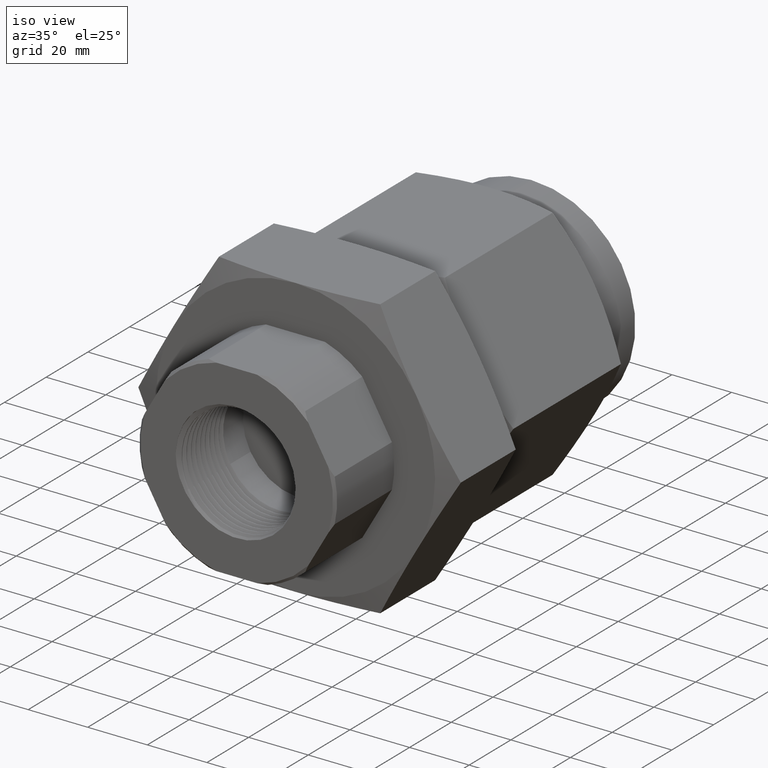
[diagram: clean part render]
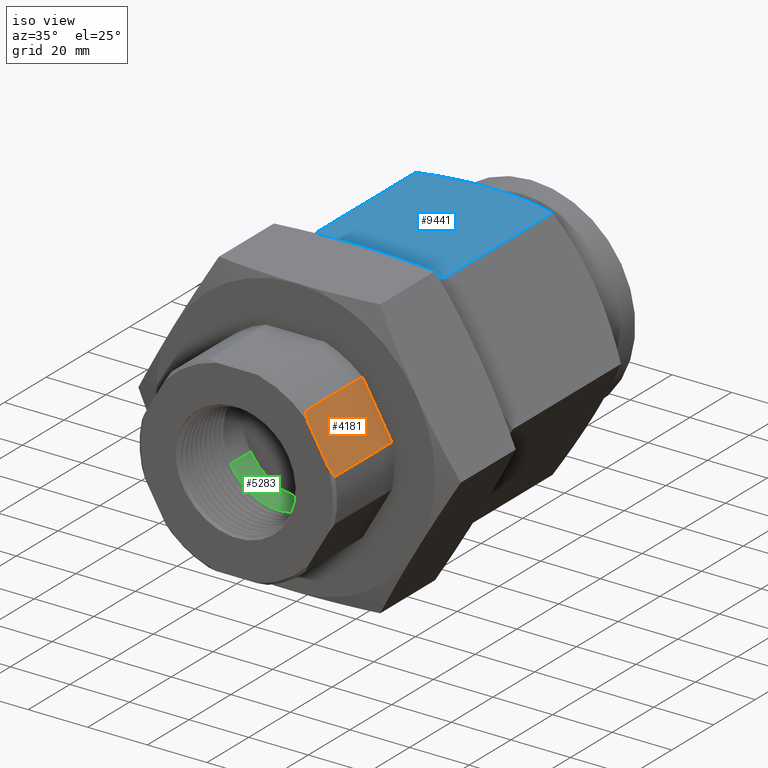
[diagram: same view with three faces highlighted in distinct colors, each labeled with its STEP entity id]
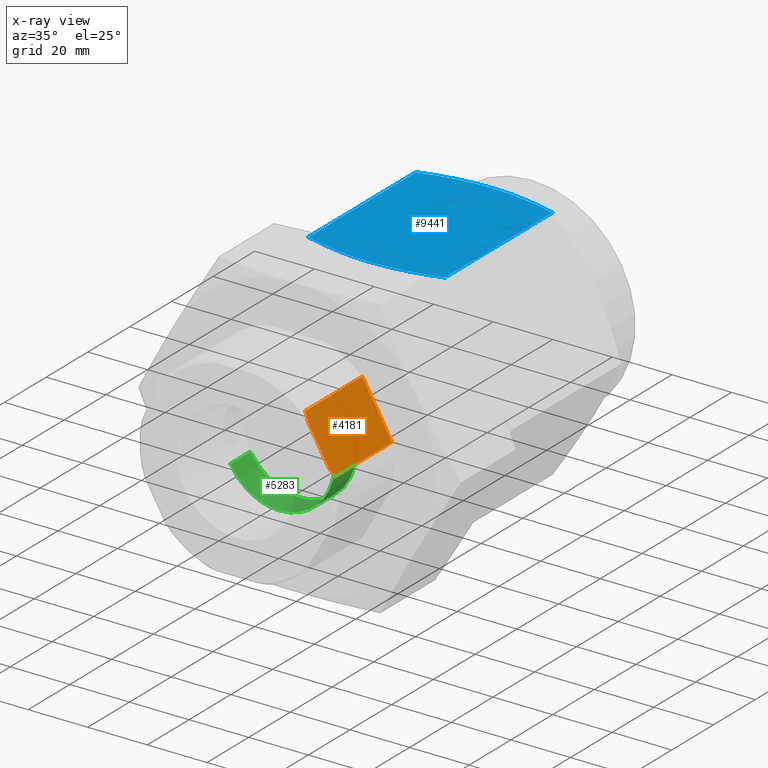
[diagram: x-ray of the same camera — body ghosted, the three highlighted faces saturated]
A machine part, iso view with three faces highlighted in distinct colors.
The next image is the same camera in x-ray (body ghosted, the three faces saturated) — at least one of them is partly hidden behind the body in this view.
Their STEP definitions:

[orange] entity #4181 — the highlighted planar face has unit normal (0.866, 0, 0.5).
#57 = CARTESIAN_POINT ( 'NONE',  ( 1.233175509396182701, -5.841264994950113199, 0.3540773630764427193 ) ) ;
#332 = CARTESIAN_POINT ( 'NONE',  ( 0.8826255555556963284, -5.819115258923458711, 0.9612476937190879145 ) ) ;
#403 = DIRECTION ( 'NONE',  ( -0.0000000000000000000, 1.000000000000000000, 0.0000000000000000000 ) ) ;
#551 = EDGE_CURVE ( 'Defeatured_0_53+Defeatured_0_44+Defeatured_0_58+Defeatured_0_36', #1548, #3541, #8849, .T. ) ;
#617 = DIRECTION ( 'NONE',  ( 0.5000000000000006661, 0.0000000000000000000, -0.8660254037844382635 ) ) ;
#839 = EDGE_CURVE ( 'Defeatured_0_53+Defeatured_0_57+Defeatured_0_43+Defeatured_0_55', #7673, #1538, #9475, .T. ) ;
#845 = CARTESIAN_POINT ( 'NONE',  ( 1.263719411576707419, -5.825144869702298500, 0.3011737726383604263 ) ) ;
#921 = VECTOR ( 'NONE', #403, 39.37007874015748143 ) ;
#990 = VECTOR ( 'NONE', #6202, 39.37007874015748143 ) ;
#1219 = CARTESIAN_POINT ( 'NONE',  ( 0.9230500090015093528, -5.841660169453755103, 0.8912304864827378381 ) ) ;
#1362 = VERTEX_POINT ( 'NONE', #5726 ) ;
#1452 = CARTESIAN_POINT ( 'NONE',  ( 1.437602170282320069, -5.850365258923459599, -1.365923996832131609E-16 ) ) ;
#1462 = ORIENTED_EDGE ( 'NONE', *, *, #839, .T. ) ;
#1535 = EDGE_CURVE ( 'Defeatured_0_53+Defeatured_0_36+Defeatured_0_44+Defeatured_0_43', #3541, #8400, #5091, .T. ) ;
#1538 = VERTEX_POINT ( 'NONE', #7748 ) ;
#1548 = VERTEX_POINT ( 'NONE', #5478 ) ;
#1555 = LINE ( 'NONE', #1452, #7450 ) ;
#1601 = ORIENTED_EDGE ( 'NONE', *, *, #2155, .T. ) ;
#1611 = CARTESIAN_POINT ( 'NONE',  ( 1.437602170282320069, -4.740365258923460168, -1.365923996832131609E-16 ) ) ;
#2155 = EDGE_CURVE ( 'Defeatured_0_53+Defeatured_0_43+Defeatured_0_36+Defeatured_0_57', #8400, #7673, #5796, .T. ) ;
#2547 = CARTESIAN_POINT ( 'NONE',  ( 0.8826255555556963284, -5.819115258923458711, 0.9612476937190879145 ) ) ;
#3037 = CARTESIAN_POINT ( 'NONE',  ( 1.273777699867857605, -4.740365258923460168, 0.2837523062809124141 ) ) ;
#3541 = VERTEX_POINT ( 'NONE', #3037 ) ;
#3578 = CARTESIAN_POINT ( 'NONE',  ( 0.9436523221580126464, -5.850365258923459599, 0.8555462333422291232 ) ) ;
#3735 = B_SPLINE_CURVE_WITH_KNOTS ( 'NONE', 3,
 ( #3915, #7729, #57, #5450, #845, #6207 ),
 .UNSPECIFIED., .F., .F.,
 ( 4, 2, 4 ),
 ( 0.05221388179553555775, 0.05379977993857580632, 0.05538567808161606182 ),
 .UNSPECIFIED. ) ;
#3748 = VECTOR ( 'NONE', #4972, 39.37007874015748143 ) ;
#3915 = CARTESIAN_POINT ( 'NONE',  ( 1.212750933265541065, -5.850365258923459599, 0.3894537666577720381 ) ) ;
#4181 = ADVANCED_FACE ( 'Defeatured_0_53', ( #8595 ), #9755, .T. ) ;
#4466 = ORIENTED_EDGE ( 'NONE', *, *, #551, .T. ) ;
#4889 = AXIS2_PLACEMENT_3D ( 'NONE', #9783, #5216, #617 ) ;
#4972 = DIRECTION ( 'NONE',  ( 0.0000000000000000000, -1.000000000000000000, -0.0000000000000000000 ) ) ;
#5078 = EDGE_LOOP ( 'NONE', ( #4466, #7697, #1601, #1462, #6976, #8004 ) ) ;
#5091 = LINE ( 'NONE', #1611, #990 ) ;
#5216 = DIRECTION ( 'NONE',  ( 0.8660254037844382635, 0.0000000000000000000, 0.5000000000000006661 ) ) ;
#5450 = CARTESIAN_POINT ( 'NONE',  ( 1.253549911119434590, -5.830815113661266480, 0.3187878641179512917 ) ) ;
#5478 = CARTESIAN_POINT ( 'NONE',  ( 1.273777699867857605, -5.819115258923460487, 0.2837523062809123586 ) ) ;
#5726 = CARTESIAN_POINT ( 'NONE',  ( 1.212750933265541065, -5.850365258923459599, 0.3894537666577720381 ) ) ;
#5796 = LINE ( 'NONE', #7958, #3748 ) ;
#5945 = EDGE_CURVE ( 'Defeatured_0_53+Defeatured_0_58+Defeatured_0_55+Defeatured_0_44', #1362, #1548, #3735, .T. ) ;
#6031 = CARTESIAN_POINT ( 'NONE',  ( 0.8826255555556963284, -4.740365258923460168, 0.9612476937190879145 ) ) ;
#6202 = DIRECTION ( 'NONE',  ( -0.5000000000000006661, 0.0000000000000000000, 0.8660254037844382635 ) ) ;
#6207 = CARTESIAN_POINT ( 'NONE',  ( 1.273777699867857605, -5.819115258923460487, 0.2837523062809123586 ) ) ;
#6976 = ORIENTED_EDGE ( 'NONE', *, *, #8549, .F. ) ;
#7228 = CARTESIAN_POINT ( 'NONE',  ( 0.9027202351847269934, -5.831161353982710516, 0.9264426876397877653 ) ) ;
#7324 = CARTESIAN_POINT ( 'NONE',  ( 1.273777699867857383, -4.850326807657659778, 0.2837523062809131358 ) ) ;
#7450 = VECTOR ( 'NONE', #9120, 39.37007874015748143 ) ;
#7673 = VERTEX_POINT ( 'NONE', #2547 ) ;
#7697 = ORIENTED_EDGE ( 'NONE', *, *, #1535, .T. ) ;
#7729 = CARTESIAN_POINT ( 'NONE',  ( 1.222971827765791275, -5.846046627301408449, 0.3717506580845377773 ) ) ;
#7748 = CARTESIAN_POINT ( 'NONE',  ( 0.9436523221580126464, -5.850365258923459599, 0.8555462333422291232 ) ) ;
#7958 = CARTESIAN_POINT ( 'NONE',  ( 0.8826255555556963284, -4.850326807657659778, 0.9612476937190879145 ) ) ;
#8004 = ORIENTED_EDGE ( 'NONE', *, *, #5945, .T. ) ;
#8400 = VERTEX_POINT ( 'NONE', #6031 ) ;
#8549 = EDGE_CURVE ( 'Defeatured_0_55+Defeatured_0_53+Defeatured_0_58+Defeatured_0_57', #1362, #1538, #1555, .T. ) ;
#8595 = FACE_OUTER_BOUND ( 'NONE', #5078, .T. ) ;
#8849 = LINE ( 'NONE', #7324, #921 ) ;
#9120 = DIRECTION ( 'NONE',  ( -0.5000000000000006661, 0.0000000000000000000, 0.8660254037844382635 ) ) ;
#9475 = B_SPLINE_CURVE_WITH_KNOTS ( 'NONE', 3,
 ( #332, #7228, #1219, #3578 ),
 .UNSPECIFIED., .F., .F.,
 ( 4, 4 ),
 ( 0.03527650963026937592, 0.03846934127459206848 ),
 .UNSPECIFIED. ) ;
#9755 = PLANE ( 'NONE',  #4889 ) ;
#9783 = CARTESIAN_POINT ( 'NONE',  ( 1.437602170282320069, 3.415442120478395349, -1.365923996832131609E-16 ) ) ;

[blue] entity #9441 — the highlighted planar face has unit normal (0, 0, -1).
#52 = DIRECTION ( 'NONE',  ( 0.0000000000000000000, 1.000000000000000000, 0.0000000000000000000 ) ) ;
#131 = EDGE_CURVE ( 'Defeatured_0_18+Defeatured_0_7+Defeatured_0_17+Defeatured_0_8', #1443, #6875, #9540, .T. ) ;
#388 = ORIENTED_EDGE ( 'NONE', *, *, #1496, .F. ) ;
#489 = EDGE_LOOP ( 'NONE', ( #3903, #8776, #7902, #388, #3988, #1073 ) ) ;
#523 = CARTESIAN_POINT ( 'NONE',  ( 0.7574239598413903263, -1.137961551194199838, 1.564999999999999281 ) ) ;
#763 = CARTESIAN_POINT ( 'NONE',  ( -0.9035531712816132766, -3.210585096871889643, 1.564999999999999281 ) ) ;
#971 = DIRECTION ( 'NONE',  ( 3.023450174812526043E-16, 0.0000000000000000000, -1.000000000000000000 ) ) ;
#1073 = ORIENTED_EDGE ( 'NONE', *, *, #8970, .F. ) ;
#1229 = LINE ( 'NONE', #5445, #3270 ) ;
#1354 = B_SPLINE_CURVE_WITH_KNOTS ( 'NONE', 3,
 ( #3468, #8807, #1960, #7317, #2719, #8079, #3506, #8867 ),
 .UNSPECIFIED., .F., .F.,
 ( 4, 2, 2, 4 ),
 ( 0.1171362608535654465, 0.1287599643593018983, 0.1345718161121701451, 0.1403836678650383640 ),
 .UNSPECIFIED. ) ;
#1443 = VERTEX_POINT ( 'NONE', #4180 ) ;
#1478 = LINE ( 'NONE', #7093, #3535 ) ;
#1496 = EDGE_CURVE ( 'Defeatured_0_19+Defeatured_0_18+Defeatured_0_3+Defeatured_0_8', #8306, #2632, #1229, .T. ) ;
#1613 = VERTEX_POINT ( 'NONE', #4747 ) ;
#1680 = PLANE ( 'NONE',  #6069 ) ;
#1732 = DIRECTION ( 'NONE',  ( 0.0000000000000000000, 1.000000000000000000, 0.0000000000000000000 ) ) ;
#1960 = CARTESIAN_POINT ( 'NONE',  ( 0.6094289521518392316, -3.287880661820777650, 1.564999999999999725 ) ) ;
#2233 = CARTESIAN_POINT ( 'NONE',  ( -0.5306385567798626024, -1.089975962029831713, 1.564999999999999725 ) ) ;
#2263 = CARTESIAN_POINT ( 'NONE',  ( -0.1528140639889800645, -3.350365258923460487, 1.564999999999999281 ) ) ;
#2289 = VERTEX_POINT ( 'NONE', #8151 ) ;
#2537 = EDGE_CURVE ( 'Defeatured_0_3+Defeatured_0_18+Defeatured_0_11+Defeatured_0_19', #1613, #8306, #5084, .T. ) ;
#2632 = VERTEX_POINT ( 'NONE', #8843 ) ;
#2719 = CARTESIAN_POINT ( 'NONE',  ( 0.3071270645104349772, -3.334179326830782664, 1.564999999999999503 ) ) ;
#2821 = CARTESIAN_POINT ( 'NONE',  ( 0.07646098121709896112, -1.040365258923458436, 1.564999999999999503 ) ) ;
#3011 = CARTESIAN_POINT ( 'NONE',  ( -0.7181939216858158614, -1.130768291849557183, 1.564999999999999281 ) ) ;
#3035 = CARTESIAN_POINT ( 'NONE',  ( -0.3045125553253294481, -3.337221417038239046, 1.564999999999999281 ) ) ;
#3270 = VECTOR ( 'NONE', #52, 39.37007874015748143 ) ;
#3468 = CARTESIAN_POINT ( 'NONE',  ( 0.9035531712819157013, -3.210585096871889643, 1.564999999999999725 ) ) ;
#3506 = CARTESIAN_POINT ( 'NONE',  ( 0.07646098121710014073, -3.350365258923458267, 1.564999999999999503 ) ) ;
#3535 = VECTOR ( 'NONE', #1732, 39.37007874015748143 ) ;
#3587 = CARTESIAN_POINT ( 'NONE',  ( 0.3071270645104325347, -1.056551191016134039, 1.564999999999999725 ) ) ;
#3797 = CARTESIAN_POINT ( 'NONE',  ( -0.8298408535343854142, -1.159351964973835525, 1.564999999999999503 ) ) ;
#3818 = CARTESIAN_POINT ( 'NONE',  ( -0.6057805361446700898, -3.285849518748868103, 1.564999999999999059 ) ) ;
#3903 = ORIENTED_EDGE ( 'NONE', *, *, #5308, .T. ) ;
#3988 = ORIENTED_EDGE ( 'NONE', *, *, #2537, .F. ) ;
#4180 = CARTESIAN_POINT ( 'NONE',  ( 0.9035531712819157013, -1.180145420975027282, 1.564999999999999725 ) ) ;
#4357 = CARTESIAN_POINT ( 'NONE',  ( 0.9035531712819157013, -1.180145420975027282, 1.564999999999999725 ) ) ;
#4407 = EDGE_CURVE ( 'Defeatured_0_18+Defeatured_0_8+Defeatured_0_7+Defeatured_0_19', #6875, #2632, #6048, .T. ) ;
#4558 = CARTESIAN_POINT ( 'NONE',  ( -0.9035531712816132766, -1.180145420975027282, 1.564999999999999281 ) ) ;
#4590 = CARTESIAN_POINT ( 'NONE',  ( -0.7555709819760989543, -3.250754258062410695, 1.564999999999999059 ) ) ;
#4747 = CARTESIAN_POINT ( 'NONE',  ( 1.511923348447106986E-13, -3.350365258923458711, 1.564999999999999503 ) ) ;
#5084 = B_SPLINE_CURVE_WITH_KNOTS ( 'NONE', 3,
 ( #6874, #2263, #3035, #8384, #3818, #9154, #4590, #9920, #5359, #763 ),
 .UNSPECIFIED., .F., .F.,
 ( 4, 2, 2, 2, 4 ),
 ( 0.1403836678650383640, 0.1519991699358029802, 0.1578069209711852605, 0.1607107964888764284, 0.1636146720065675686 ),
 .UNSPECIFIED. ) ;
#5308 = EDGE_CURVE ( 'Defeatured_0_18+Defeatured_0_17+Defeatured_0_2+Defeatured_0_7', #2289, #1443, #1478, .T. ) ;
#5359 = CARTESIAN_POINT ( 'NONE',  ( -0.8667827373933875146, -3.221199806823682898, 1.564999999999999281 ) ) ;
#5445 = CARTESIAN_POINT ( 'NONE',  ( -0.9035531712816132766, -13.61734876248475423, 1.564999999999999281 ) ) ;
#5589 = CARTESIAN_POINT ( 'NONE',  ( 1.511923348447406374E-13, -13.61734876248475423, 1.564999999999999503 ) ) ;
#6048 = B_SPLINE_CURVE_WITH_KNOTS ( 'NONE', 3,
 ( #9099, #9871, #6845, #2233, #7616, #3011, #8357, #3797, #9132, #4558 ),
 .UNSPECIFIED., .F., .F.,
 ( 4, 2, 2, 2, 4 ),
 ( 0.1403836678650385028, 0.1519991699358030912, 0.1578069209711853993, 0.1607107964888765395, 0.1636146720065676796 ),
 .UNSPECIFIED. ) ;
#6069 = AXIS2_PLACEMENT_3D ( 'NONE', #5589, #971, #6330 ) ;
#6330 = DIRECTION ( 'NONE',  ( 1.000000000000000000, 0.0000000000000000000, 3.023450174812526043E-16 ) ) ;
#6577 = FACE_OUTER_BOUND ( 'NONE', #489, .T. ) ;
#6699 = CARTESIAN_POINT ( 'NONE',  ( 0.6094289521518378994, -1.102849856026138609, 1.564999999999999503 ) ) ;
#6845 = CARTESIAN_POINT ( 'NONE',  ( -0.3045125553253301143, -1.053509100808678545, 1.564999999999999503 ) ) ;
#6874 = CARTESIAN_POINT ( 'NONE',  ( 1.511923348447106986E-13, -3.350365258923458711, 1.564999999999999503 ) ) ;
#6875 = VERTEX_POINT ( 'NONE', #9457 ) ;
#7093 = CARTESIAN_POINT ( 'NONE',  ( 0.9035531712819157013, -13.61734876248475423, 1.564999999999999725 ) ) ;
#7317 = CARTESIAN_POINT ( 'NONE',  ( 0.3832309710771526490, -3.324607656437669423, 1.564999999999999503 ) ) ;
#7408 = CARTESIAN_POINT ( 'NONE',  ( 1.511923348447406374E-13, -1.040365258923458436, 1.564999999999999503 ) ) ;
#7435 = CARTESIAN_POINT ( 'NONE',  ( -0.9035531712816132766, -3.210585096871889643, 1.564999999999999281 ) ) ;
#7616 = CARTESIAN_POINT ( 'NONE',  ( -0.6057805361446695347, -1.104880999098049044, 1.564999999999999281 ) ) ;
#7902 = ORIENTED_EDGE ( 'NONE', *, *, #4407, .T. ) ;
#8079 = CARTESIAN_POINT ( 'NONE',  ( 0.1532791009017170636, -3.347105788063061471, 1.564999999999999503 ) ) ;
#8151 = CARTESIAN_POINT ( 'NONE',  ( 0.9035531712819157013, -3.210585096871889643, 1.564999999999999725 ) ) ;
#8157 = CARTESIAN_POINT ( 'NONE',  ( 0.1532791009017143158, -1.043624729783855898, 1.564999999999999503 ) ) ;
#8306 = VERTEX_POINT ( 'NONE', #7435 ) ;
#8357 = CARTESIAN_POINT ( 'NONE',  ( -0.7555709819761008417, -1.139976259784506674, 1.564999999999999281 ) ) ;
#8384 = CARTESIAN_POINT ( 'NONE',  ( -0.5306385567798621583, -3.300754555817085656, 1.564999999999999503 ) ) ;
#8776 = ORIENTED_EDGE ( 'NONE', *, *, #131, .T. ) ;
#8807 = CARTESIAN_POINT ( 'NONE',  ( 0.7574239598413911034, -3.252768966652716642, 1.564999999999999725 ) ) ;
#8843 = CARTESIAN_POINT ( 'NONE',  ( -0.9035531712816132766, -1.180145420975027282, 1.564999999999999281 ) ) ;
#8867 = CARTESIAN_POINT ( 'NONE',  ( 1.511923348447106986E-13, -3.350365258923458711, 1.564999999999999503 ) ) ;
#8945 = CARTESIAN_POINT ( 'NONE',  ( 0.3832309710771509836, -1.066122861409247058, 1.565000000000000169 ) ) ;
#8970 = EDGE_CURVE ( 'Defeatured_0_2+Defeatured_0_18+Defeatured_0_17+Defeatured_0_11', #2289, #1613, #1354, .T. ) ;
#9099 = CARTESIAN_POINT ( 'NONE',  ( 1.511923348447406374E-13, -1.040365258923458436, 1.564999999999999503 ) ) ;
#9132 = CARTESIAN_POINT ( 'NONE',  ( -0.8667827373933879587, -1.169530711023234026, 1.564999999999999281 ) ) ;
#9154 = CARTESIAN_POINT ( 'NONE',  ( -0.7181939216858166386, -3.259962225997359297, 1.564999999999999281 ) ) ;
#9441 = ADVANCED_FACE ( 'Defeatured_0_18', ( #6577 ), #1680, .F. ) ;
#9457 = CARTESIAN_POINT ( 'NONE',  ( 1.511923348447406374E-13, -1.040365258923458436, 1.564999999999999503 ) ) ;
#9540 = B_SPLINE_CURVE_WITH_KNOTS ( 'NONE', 3,
 ( #4357, #523, #6699, #8945, #3587, #8157, #2821, #7408 ),
 .UNSPECIFIED., .F., .F.,
 ( 4, 2, 2, 4 ),
 ( 0.1171362608535655436, 0.1287599643593020371, 0.1345718161121702561, 0.1403836678650385028 ),
 .UNSPECIFIED. ) ;
#9871 = CARTESIAN_POINT ( 'NONE',  ( -0.1528140639889812025, -1.040365258923458214, 1.564999999999999281 ) ) ;
#9920 = CARTESIAN_POINT ( 'NONE',  ( -0.8298408535343838599, -3.231378552873082732, 1.564999999999999503 ) ) ;

[green] entity #5283 — the highlighted cylindrical surface (partial cylindrical patch) has radius 19.05 mm, axis along (0, -1, -0).
#254 = ORIENTED_EDGE ( 'NONE', *, *, #5994, .F. ) ;
#293 = CIRCLE ( 'NONE', #5170, 0.7500000000000001110 ) ;
#360 = CARTESIAN_POINT ( 'NONE',  ( 0.6495196627501753639, -5.086239550705692558, 0.3749989436019569577 ) ) ;
#387 = FACE_OUTER_BOUND ( 'NONE', #2425, .T. ) ;
#408 = CARTESIAN_POINT ( 'NONE',  ( 0.7458032475535338879, -5.071924841701319409, 0.2082296299916158722 ) ) ;
#444 = CARTESIAN_POINT ( 'NONE',  ( -0.6495190528381779016, -5.042761311599803342, -0.3749999999999993339 ) ) ;
#522 = CARTESIAN_POINT ( 'NONE',  ( 0.7498355626653154804, -5.043017121457082474, 0.01570442493918775342 ) ) ;
#879 = EDGE_CURVE ( 'Defeatured_0_62+Defeatured_0_67+Defeatured_0_67+Defeatured_0_67', #7200, #6762, #293, .T. ) ;
#900 = CARTESIAN_POINT ( 'NONE',  ( 0.6495190528384805484, -4.662865258923458711, 0.3750000000000002776 ) ) ;
#953 = DIRECTION ( 'NONE',  ( 0.8660254037844383745, 0.0000000000000000000, 0.5000000000000003331 ) ) ;
#986 = ORIENTED_EDGE ( 'NONE', *, *, #3277, .F. ) ;
#1025 = EDGE_CURVE ( 'Defeatured_0_65+Defeatured_0_67+Defeatured_0_66+Defeatured_0_64', #3104, #2788, #6751, .T. ) ;
#1188 = CARTESIAN_POINT ( 'NONE',  ( 0.6495196627501753639, -5.075360575885927261, 0.3749989436019569577 ) ) ;
#1451 = VECTOR ( 'NONE', #9239, 39.37007874015748143 ) ;
#1610 = VERTEX_POINT ( 'NONE', #9296 ) ;
#1895 = CARTESIAN_POINT ( 'NONE',  ( -0.3050547110333163836, -5.051456920246385707, -0.6851581009345854012 ) ) ;
#1946 = ORIENTED_EDGE ( 'NONE', *, *, #5325, .T. ) ;
#2425 = EDGE_LOOP ( 'NONE', ( #8312, #1946, #8996, #2674, #986, #6488, #3466, #254 ) ) ;
#2459 = CARTESIAN_POINT ( 'NONE',  ( 1.516655047970987846E-13, -4.850326807657659778, 0.0000000000000000000 ) ) ;
#2480 = DIRECTION ( 'NONE',  ( 0.0000000000000000000, -1.000000000000000000, -0.0000000000000000000 ) ) ;
#2489 = CARTESIAN_POINT ( 'NONE',  ( 1.516655047970987846E-13, -4.662865258923458711, 0.0000000000000000000 ) ) ;
#2653 = CARTESIAN_POINT ( 'NONE',  ( 0.1559313817780042244, -5.060152572420298256, -0.7336112077775596152 ) ) ;
#2674 = ORIENTED_EDGE ( 'NONE', *, *, #6420, .F. ) ;
#2747 =( BOUNDED_CURVE ( )  B_SPLINE_CURVE ( 2, ( #9519, #4167, #1895, #7254, #2653, #8005, #3435, #8806, #4199, #9544, #4994, #360, #5764 ),
 .UNSPECIFIED., .F., .T. ) 
 B_SPLINE_CURVE_WITH_KNOTS ( ( 3, 2, 2, 2, 2, 2, 3 ),
 ( 0.05271287997167806161, 0.06180374121494602857, 0.07089465030585517802, 0.07998555939676421644, 0.08907646848767336589, 0.09816737757858240432, 0.09816742542622347578 ),
 .UNSPECIFIED. ) 
 CURVE ( )  GEOMETRIC_REPRESENTATION_ITEM ( )  RATIONAL_B_SPLINE_CURVE ( ( 0.9999994848000586245, 0.9510567738964801343, 1.000000000000000000, 0.9510565162951536422, 1.000000000000000000, 0.9510565162951536422, 1.000000000000000000, 0.9510565162951536422, 1.000000000000000000, 0.9510565162951536422, 1.000000000000000000, 0.9999997423986735079, 0.9999994848000586245 ) ) 
 REPRESENTATION_ITEM ( '' )  );
#2778 = CARTESIAN_POINT ( 'NONE',  ( 0.7498355529948542708, -4.992298761524515349, 0.01570488666398634978 ) ) ;
#2788 = VERTEX_POINT ( 'NONE', #7468 ) ;
#2844 = CARTESIAN_POINT ( 'NONE',  ( 0.7498355529948542708, -4.992298761524515349, 0.01570488666398634978 ) ) ;
#3104 = VERTEX_POINT ( 'NONE', #5645 ) ;
#3172 = DIRECTION ( 'NONE',  ( 0.0000000000000000000, -1.000000000000000000, -0.0000000000000000000 ) ) ;
#3271 = DIRECTION ( 'NONE',  ( 0.8660254037844383745, 0.0000000000000000000, 0.5000000000000003331 ) ) ;
#3277 = EDGE_CURVE ( 'Defeatured_0_64+Defeatured_0_67+Defeatured_0_65+Defeatured_0_68', #2788, #1610, #5482, .T. ) ;
#3285 = VECTOR ( 'NONE', #7855, 39.37007874015748143 ) ;
#3338 = CARTESIAN_POINT ( 'NONE',  ( 0.7498355609694137280, -5.068376301426066988, 0.01570450591420383124 ) ) ;
#3435 = CARTESIAN_POINT ( 'NONE',  ( 0.5573569866629211056, -5.068848224594210805, -0.5018497677773672283 ) ) ;
#3466 = ORIENTED_EDGE ( 'NONE', *, *, #8213, .T. ) ;
#3553 = CARTESIAN_POINT ( 'NONE',  ( 0.6495202726584331510, -4.999283007202906859, 0.3749978872019306131 ) ) ;
#3620 = CARTESIAN_POINT ( 'NONE',  ( -0.6495190528381774575, -4.662865258923458711, -0.3750000000000002220 ) ) ;
#4109 = CARTESIAN_POINT ( 'NONE',  ( 0.7498355675003860465, -5.068376301423365149, 0.01570419407678516621 ) ) ;
#4167 = CARTESIAN_POINT ( 'NONE',  ( -0.5276748410522665855, -5.047109118220719282, -0.5860403654213804936 ) ) ;
#4199 = CARTESIAN_POINT ( 'NONE',  ( 0.7458911665098819643, -5.077543876768124242, -0.07839877373246245673 ) ) ;
#4247 = VERTEX_POINT ( 'NONE', #9082 ) ;
#4313 = CARTESIAN_POINT ( 'NONE',  ( 0.6495190528384811035, -4.999283050730237044, 0.3749999999999993894 ) ) ;
#4577 = VECTOR ( 'NONE', #2480, 39.37007874015748143 ) ;
#4858 =( BOUNDED_CURVE ( )  B_SPLINE_CURVE ( 2, ( #2778, #7365, #3553, #8912, #4313 ),
 .UNSPECIFIED., .F., .T. ) 
 B_SPLINE_CURVE_WITH_KNOTS ( ( 3, 2, 3 ),
 ( 0.0000000000000000000, 0.007258286669491464949, 0.007258334517132535545 ),
 .UNSPECIFIED. ) 
 CURVE ( )  GEOMETRIC_REPRESENTATION_ITEM ( )  RATIONAL_B_SPLINE_CURVE ( ( 0.9842450381126793824, 0.9609229581133302833, 1.000000000000000000, 0.9999997423986735079, 0.9999994848000586245 ) ) 
 REPRESENTATION_ITEM ( '' )  );
#4994 = CARTESIAN_POINT ( 'NONE',  ( 0.6495202726584331510, -5.086239528942037680, 0.3749978872019306131 ) ) ;
#5037 = CARTESIAN_POINT ( 'NONE',  ( 0.7498355544403980666, -5.068376307171768680, 0.01570481764581331194 ) ) ;
#5170 = AXIS2_PLACEMENT_3D ( 'NONE', #2489, #7857, #3271 ) ;
#5207 = AXIS2_PLACEMENT_3D ( 'NONE', #2459, #3172, #953 ) ;
#5283 = ADVANCED_FACE ( 'Defeatured_0_67', ( #387 ), #7367, .F. ) ;
#5325 = EDGE_CURVE ( 'NONE', #7200, #7065, #5586, .T. ) ;
#5415 = CARTESIAN_POINT ( 'NONE',  ( 0.6495190528384805484, -4.850326807657659778, 0.3750000000000002776 ) ) ;
#5482 =( BOUNDED_CURVE ( )  B_SPLINE_CURVE ( 2, ( #4109, #3338, #5037, #408, #5817, #1188, #6561 ),
 .UNSPECIFIED., .F., .T. ) 
 B_SPLINE_CURVE_WITH_KNOTS ( ( 3, 2, 2, 3 ),
 ( -1.203768573710117374E-08, 0.0000000000000000000, 0.007258288002078616685, 0.007258335849719689016 ),
 .UNSPECIFIED. ) 
 CURVE ( )  GEOMETRIC_REPRESENTATION_ITEM ( )  RATIONAL_B_SPLINE_CURVE ( ( 0.9842450466763288386, 0.9842450466763288386, 0.9842450466763288386, 0.9609229509389698443, 1.000000000000000000, 0.9999997423986735079, 0.9999994848000586245 ) ) 
 REPRESENTATION_ITEM ( '' )  );
#5547 = VERTEX_POINT ( 'NONE', #5841 ) ;
#5586 = LINE ( 'NONE', #8529, #3285 ) ;
#5645 = CARTESIAN_POINT ( 'NONE',  ( 0.7498355529948542708, -4.992298761524515349, 0.01570488666398634978 ) ) ;
#5764 = CARTESIAN_POINT ( 'NONE',  ( 0.6495190528384811035, -5.086239572469368753, 0.3749999999999993894 ) ) ;
#5817 = CARTESIAN_POINT ( 'NONE',  ( 0.6495202726584331510, -5.075360554122273271, 0.3749978872019306131 ) ) ;
#5841 = CARTESIAN_POINT ( 'NONE',  ( 0.6495190528384811035, -4.999283050730237044, 0.3749999999999993894 ) ) ;
#5913 = CARTESIAN_POINT ( 'NONE',  ( 0.7498355578301382218, -5.017657941490798912, 0.01570465580158809937 ) ) ;
#5994 = EDGE_CURVE ( 'NONE', #6762, #5547, #9848, .T. ) ;
#6420 = EDGE_CURVE ( 'NONE', #1610, #4247, #6611, .T. ) ;
#6488 = ORIENTED_EDGE ( 'NONE', *, *, #1025, .F. ) ;
#6561 = CARTESIAN_POINT ( 'NONE',  ( 0.6495190528384811035, -5.075360597649604344, 0.3749999999999993894 ) ) ;
#6611 = LINE ( 'NONE', #8591, #4577 ) ;
#6751 = B_SPLINE_CURVE_WITH_KNOTS ( 'NONE', 3,
 ( #2844, #5913, #522, #8190 ),
 .UNSPECIFIED., .F., .F.,
 ( 4, 4 ),
 ( 1.195016740612312596E-07, 0.001932489015184958451 ),
 .UNSPECIFIED. ) ;
#6762 = VERTEX_POINT ( 'NONE', #900 ) ;
#7065 = VERTEX_POINT ( 'NONE', #444 ) ;
#7200 = VERTEX_POINT ( 'NONE', #3620 ) ;
#7254 = CARTESIAN_POINT ( 'NONE',  ( -0.08243334900613580318, -5.055804746333341981, -0.7842763849779968988 ) ) ;
#7365 = CARTESIAN_POINT ( 'NONE',  ( 0.7458032291575779071, -4.995847295438386126, 0.2082296618545851907 ) ) ;
#7367 = CYLINDRICAL_SURFACE ( 'NONE', #5207, 0.7500000000000001110 ) ;
#7468 = CARTESIAN_POINT ( 'NONE',  ( 0.7498355675003860465, -5.068376301423365149, 0.01570419407678516621 ) ) ;
#7855 = DIRECTION ( 'NONE',  ( 0.0000000000000000000, -1.000000000000000000, -0.0000000000000000000 ) ) ;
#7857 = DIRECTION ( 'NONE',  ( 0.0000000000000000000, -1.000000000000000000, -0.0000000000000000000 ) ) ;
#8005 = CARTESIAN_POINT ( 'NONE',  ( 0.3942961125621445295, -5.064500398507254531, -0.6829460305771223316 ) ) ;
#8190 = CARTESIAN_POINT ( 'NONE',  ( 0.7498355675003860465, -5.068376301423365149, 0.01570419407678516621 ) ) ;
#8213 = EDGE_CURVE ( 'Defeatured_0_67+Defeatured_0_66+Defeatured_0_65+Defeatured_0_68', #3104, #5547, #4858, .T. ) ;
#8312 = ORIENTED_EDGE ( 'NONE', *, *, #879, .F. ) ;
#8529 = CARTESIAN_POINT ( 'NONE',  ( -0.6495190528381773465, -4.850326807657659778, -0.3750000000000001665 ) ) ;
#8591 = CARTESIAN_POINT ( 'NONE',  ( 0.6495190528384805484, -4.850326807657659778, 0.3750000000000002776 ) ) ;
#8806 = CARTESIAN_POINT ( 'NONE',  ( 0.7204178607636978482, -5.073196050681167080, -0.3207535049776121250 ) ) ;
#8912 = CARTESIAN_POINT ( 'NONE',  ( 0.6495196627501753639, -4.999283028966561737, 0.3749989436019569577 ) ) ;
#8996 = ORIENTED_EDGE ( 'NONE', *, *, #9917, .T. ) ;
#9082 = CARTESIAN_POINT ( 'NONE',  ( 0.6495190528384811035, -5.086239572469368753, 0.3749999999999993894 ) ) ;
#9239 = DIRECTION ( 'NONE',  ( 0.0000000000000000000, -1.000000000000000000, -0.0000000000000000000 ) ) ;
#9296 = CARTESIAN_POINT ( 'NONE',  ( 0.6495190528384811035, -5.075360597649604344, 0.3749999999999993894 ) ) ;
#9519 = CARTESIAN_POINT ( 'NONE',  ( -0.6495190528381779016, -5.042761311599803342, -0.3749999999999993339 ) ) ;
#9544 = CARTESIAN_POINT ( 'NONE',  ( 0.7713644722560659694, -5.081891702855081405, 0.1639559575126872670 ) ) ;
#9848 = LINE ( 'NONE', #5415, #1451 ) ;
#9917 = EDGE_CURVE ( 'Defeatured_0_67+Defeatured_0_66+Defeatured_0_65+Defeatured_0_68', #7065, #4247, #2747, .T. ) ;